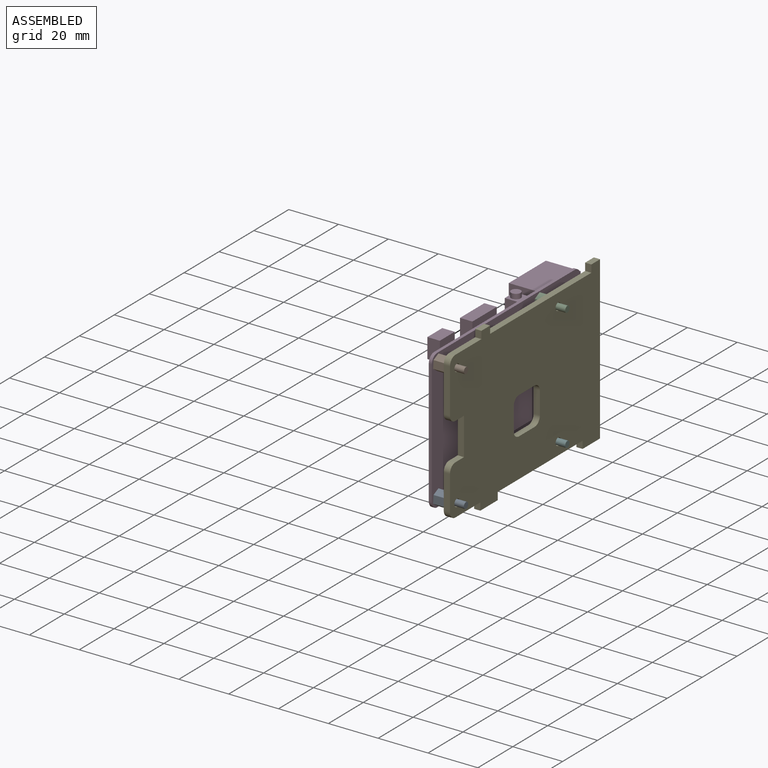
[diagram: assembled view]
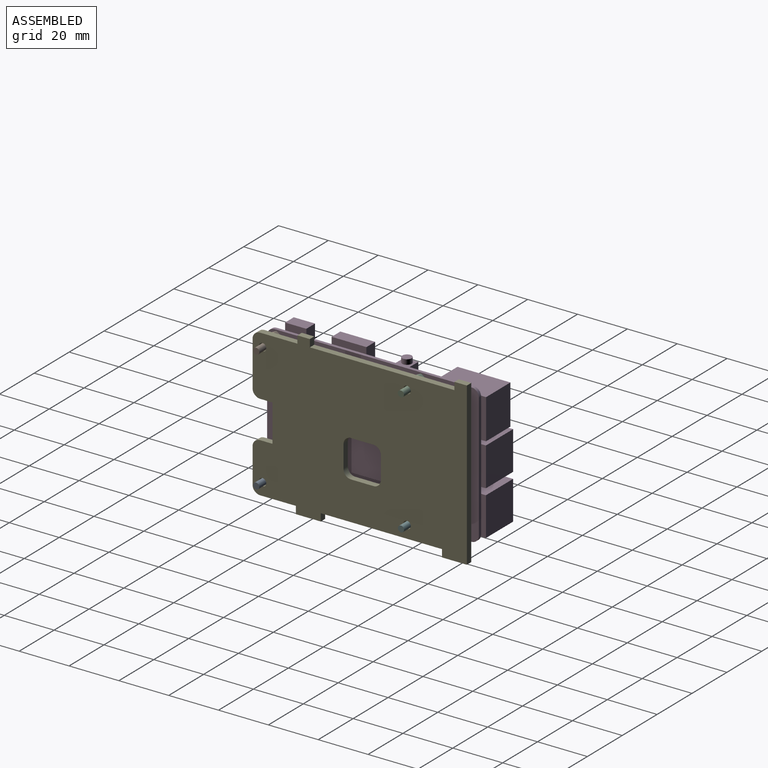
[diagram: assembled view, second angle]
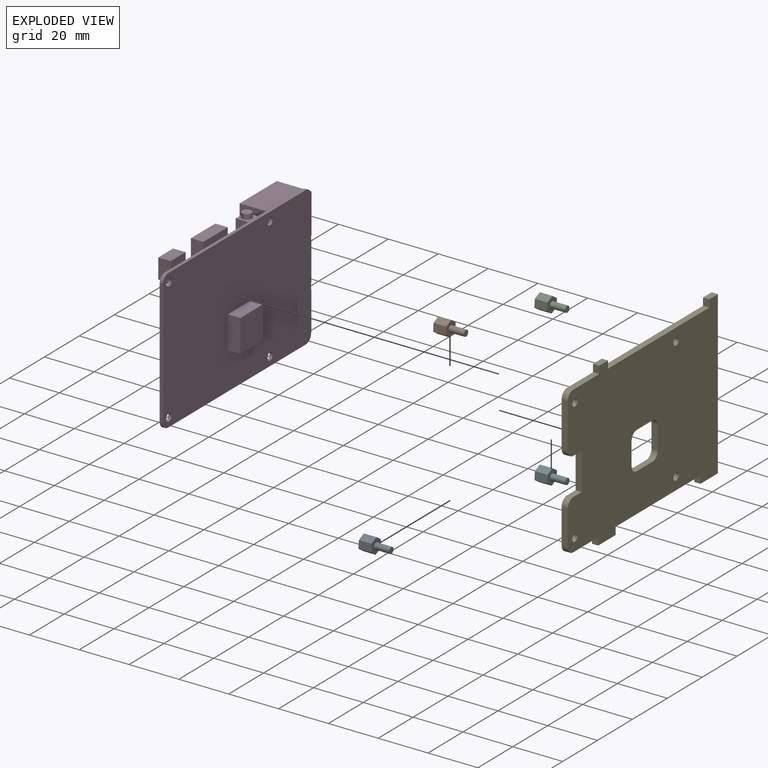
[diagram: exploded view]
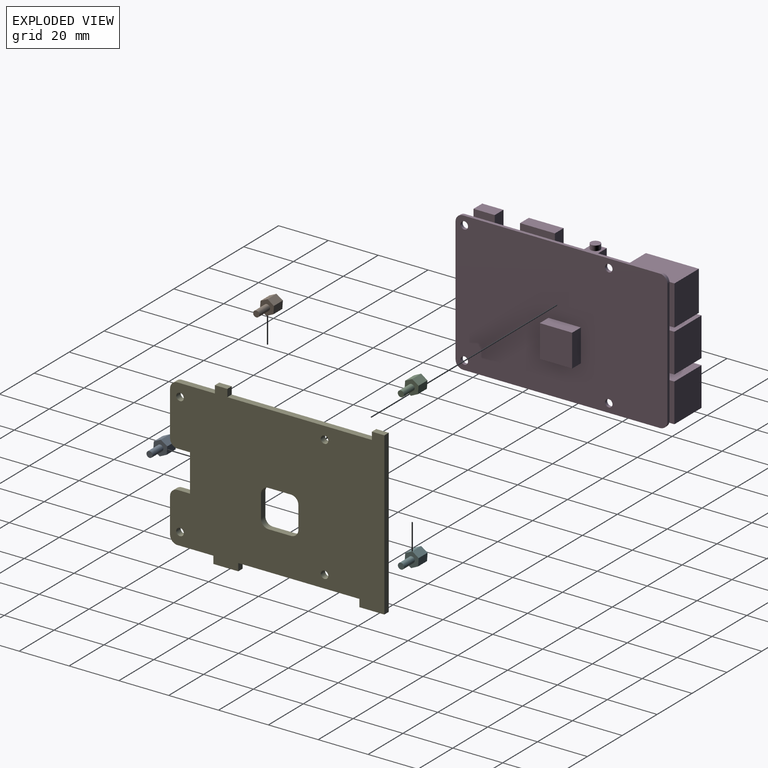
[diagram: exploded view, second angle]
ASSEMBLY  parts=6 mates=3
PART A: 12 faces, bbox 6.2x5.6x11.2 mm
  f0: plane 5.12x3.11mm, normal (-0.07,1,0), area 16mm2, adj f1,f5,f6,f7
  f1: plane 5.12x2.81mm, normal (-0.9,0.43,0), area 16mm2, adj f0,f2,f6,f7
  f2: plane 5.12x2.58mm, normal (-0.83,-0.56,0), area 16mm2, adj f1,f3,f6,f7
  f3: plane 5.12x3.11mm, normal (0.07,-1,0), area 16mm2, adj f2,f4,f6,f7
  f4: plane 5.12x2.81mm, normal (0.9,-0.43,0), area 16mm2, adj f3,f5,f6,f7
  f5: plane 5.12x2.58mm, normal (0.83,0.56,0), area 16mm2, adj f0,f4,f6,f7
  f6: plane 6.22x5.62mm, normal (0,0,1), area 22.1mm2, adj f0,f1,f2,f3,f4,f5,f11
  f7: plane 6.22x5.62mm, normal (0,0,-1), area 20.4mm2, adj f0,f1,f2,f3,f4,f5,f8
  f8: cylinder r=1.24mm len=6.12mm, axis (0,0,-1), area 47.7mm2, adj f7,f9
  f9: plane 2.48x2.48mm, normal (0,0,-1), area 4.8mm2, adj f8
  f10: cone r=0mm half-angle=59deg, axis (0,0,1), area 3.7mm2, adj f11
  f11: cylinder r=1mm len=4mm, axis (0,0,1), area 25.1mm2, adj f6,f10
PART B: same geometry as A
PART C: same geometry as A
PART D: 55 faces, bbox 87x21.8x58.8 mm
  f0: plane 85x56mm, normal (0,1,0), area 3708.4mm2, adj f2,f3,f4,f5,f6,f7,f8,f9
  f1: plane 85x56mm, normal (0,-1,0), area 4555mm2, adj f2,f3,f4,f5,f6,f7,f8,f9
  f2: plane 79x1.25mm, normal (0,0,-1), area 98.7mm2, adj f0,f1,f10,f11
  f3: plane 50x1.25mm, normal (1,0,0), area 62.5mm2, adj f0,f1,f11,f12,f14,f20,f26
  f4: plane 79x6.25mm, normal (0,0,1), area 115.3mm2, adj f0,f1,f12,f13,f38,f39,f40,f41
  f5: cylinder r=1.5mm len=3mm, axis (0,-1,0), area 11.8mm2, adj f0,f1
  f6: cylinder r=1.5mm len=3mm, axis (0,-1,0), area 11.8mm2, adj f0,f1
  f7: cylinder r=1.5mm len=3mm, axis (0,-1,0), area 11.8mm2, adj f0,f1
  f8: cylinder r=1.5mm len=3mm, axis (0,-1,0), area 11.8mm2, adj f0,f1
  f9: plane 50x1.25mm, normal (-1,0,0), area 62.5mm2, adj f0,f1,f10,f13
  f10: cylinder r=3mm len=3mm, axis (0,-1,0), area 5.9mm2, adj f0,f1,f2,f9
  f11: cylinder r=3mm len=3mm, axis (0,1,0), area 5.9mm2, adj f0,f1,f2,f3,f20
  f12: cylinder r=3mm len=3mm, axis (0,-1,0), area 5.9mm2, adj f0,f1,f3,f4,f26
  f13: cylinder r=3mm len=3mm, axis (0,1,0), area 5.9mm2, adj f0,f1,f4,f9
  f14: plane 15.5x1.95mm, normal (0,-1,0), area 30.2mm2, adj f3,f15,f16,f18
  f15: plane 15.55x15.5mm, normal (1,0,0), area 241mm2, adj f14,f16,f18,f19
  f16: plane 17.15x15.55mm, normal (0,0,-1), area 266.7mm2, adj f0,f14,f15,f17,f19
  f17: plane 15.55x15.5mm, normal (-1,0,0), area 241mm2, adj f0,f16,f18,f19
  f18: plane 17.15x15.55mm, normal (0,0,1), area 266.7mm2, adj f0,f14,f15,f17,f19
  f19: plane 17.15x15.5mm, normal (0,1,0), area 265.8mm2, adj f15,f16,f17,f18
  f20: plane 15.5x2.06mm, normal (0,-1,0), area 30.3mm2, adj f3,f11,f21,f23,f24
  f21: plane 17.15x15.55mm, normal (0,0,-1), area 266.7mm2, adj f0,f20,f22,f24,f25
  f22: plane 15.55x15.5mm, normal (-1,0,0), area 241mm2, adj f0,f21,f23,f25
  f23: plane 17.15x15.55mm, normal (0,0,1), area 266.7mm2, adj f0,f20,f22,f24,f25
  f24: plane 15.55x15.5mm, normal (1,0,0), area 241mm2, adj f20,f21,f23,f25
  f25: plane 17.15x15.5mm, normal (0,1,0), area 265.8mm2, adj f21,f22,f23,f24
  f26: plane 16x2.02mm, normal (0,-1,0), area 32mm2, adj f3,f12,f27,f29,f30
  f27: plane 21.25x13.95mm, normal (0,0,-1), area 296.4mm2, adj f0,f26,f28,f30,f31
  f28: plane 16x13.95mm, normal (-1,0,0), area 223.2mm2, adj f0,f27,f29,f31
  f29: plane 21.25x13.95mm, normal (0,0,1), area 296.4mm2, adj f0,f26,f28,f30,f31
  f30: plane 16x13.95mm, normal (1,0,0), area 223.2mm2, adj f26,f27,f29,f31
  f31: plane 21.25x16mm, normal (0,1,0), area 340mm2, adj f27,f28,f29,f30
  f32: plane 13x5mm, normal (0,0,-1), area 65mm2, adj f1,f33,f35,f36
  f33: plane 13x5mm, normal (1,0,0), area 65mm2, adj f1,f32,f34,f36
  f34: plane 13x5mm, normal (0,0,1), area 65mm2, adj f1,f33,f35,f36
  f35: plane 13x5mm, normal (-1,0,0), area 65mm2, adj f1,f32,f34,f36
  f36: plane 13x13mm, normal (0,-1,0), area 169mm2, adj f32,f33,f34,f35
  f37: plane 5.63x5mm, normal (0,0,-1), area 28.1mm2, adj f0,f38,f39,f40
  f38: plane 12.27x5mm, normal (-1,0,0), area 61.3mm2, adj f0,f4,f37,f40
  f39: plane 12.27x5mm, normal (1,0,0), area 61.3mm2, adj f0,f4,f37,f40
  f40: plane 12.27x5.63mm, normal (0,1,0), area 69mm2, adj f4,f37,f38,f39
  f41: cylinder r=1.92mm len=3.83mm, axis (0,0,1), area 24.1mm2, adj f4,f42
  f42: plane 3.83x3.83mm, normal (0,0,1), area 11.5mm2, adj f41
  f43: plane 13.97x2.61mm, normal (0,-1,0), area 36.5mm2, adj f4,f45,f46,f47
  f44: plane 13.97x5mm, normal (0,0,-1), area 69.9mm2, adj f0,f45,f47,f48
  f45: plane 11.43x5mm, normal (-1,0,0), area 57.2mm2, adj f0,f43,f44,f46,f48
  f46: plane 13.97x5mm, normal (0,0,1), area 69.9mm2, adj f43,f45,f47,f48
  f47: plane 11.43x5mm, normal (1,0,0), area 57.2mm2, adj f0,f43,f44,f46,f48
  f48: plane 13.97x11.43mm, normal (0,1,0), area 159.7mm2, adj f44,f45,f46,f47
  f49: plane 8.53x2.8mm, normal (0,-1,0), area 23.8mm2, adj f4,f50,f51,f52
  f50: plane 7.98x5mm, normal (-1,0,0), area 39.9mm2, adj f0,f49,f51,f53,f54
  f51: plane 8.53x5mm, normal (0,0,1), area 42.6mm2, adj f49,f50,f52,f54
  f52: plane 7.98x5mm, normal (1,0,0), area 39.9mm2, adj f0,f49,f51,f53,f54
  f53: plane 8.53x5mm, normal (0,0,-1), area 42.6mm2, adj f0,f50,f52,f54
  f54: plane 8.53x7.98mm, normal (0,1,0), area 68.1mm2, adj f50,f51,f52,f53
PART E: 38 faces, bbox 86x2.5x65 mm
  f0: plane 5x2.5mm, normal (0,0,1), area 12.5mm2, adj f27,f28,f29,f30
  f1: plane 14x2.5mm, normal (-1,0,0), area 35mm2, adj f28,f29,f30,f31
  f2: plane 14.37x2.5mm, normal (0,0,-1), area 35.9mm2, adj f3,f28,f29,f31
  f3: plane 3x2.5mm, normal (-1,0,0), area 7.5mm2, adj f2,f4,f28,f29
  f4: plane 10x2.5mm, normal (0,0,-1), area 25mm2, adj f3,f5,f28,f29
  f5: plane 3x2.5mm, normal (1,0,0), area 7.5mm2, adj f4,f6,f28,f29
  f6: plane 48.63x2.5mm, normal (0,0,-1), area 121.6mm2, adj f5,f7,f28,f29
  f7: plane 3x2.5mm, normal (-1,0,0), area 7.5mm2, adj f6,f8,f28,f29
  f8: plane 10x2.5mm, normal (0,0,-1), area 25mm2, adj f7,f9,f28,f29
  f9: plane 65x2.5mm, normal (1,0,0), area 162.5mm2, adj f8,f10,f28,f29
  f10: plane 5x2.5mm, normal (0,0,1), area 12.5mm2, adj f9,f11,f28,f29
  f11: plane 3x2.5mm, normal (-1,0,0), area 7.5mm2, adj f10,f12,f28,f29
  f12: plane 58x2.5mm, normal (0,0,1), area 145mm2, adj f11,f13,f28,f29
  f13: plane 3x2.5mm, normal (1,0,0), area 7.5mm2, adj f12,f14,f28,f29
  f14: plane 5x2.5mm, normal (0,0,1), area 12.5mm2, adj f13,f15,f28,f29
  f15: plane 3x2.5mm, normal (-1,0,0), area 7.5mm2, adj f14,f16,f28,f29
  f16: plane 15x2.5mm, normal (0,0,1), area 37.5mm2, adj f15,f28,f29,f32
  f17: plane 18x2.5mm, normal (-1,0,0), area 45mm2, adj f28,f29,f32,f33
  f18: plane 5x2.5mm, normal (0,0,-1), area 12.5mm2, adj f27,f28,f29,f33
  f19: plane 9x2.5mm, normal (-1,0,0), area 22.5mm2, adj f28,f29,f34,f35
  f20: plane 9x2.5mm, normal (0,0,1), area 22.5mm2, adj f28,f29,f35,f36
  f21: plane 9x2.5mm, normal (1,0,0), area 22.5mm2, adj f28,f29,f36,f37
  f22: plane 9x2.5mm, normal (0,0,-1), area 22.5mm2, adj f28,f29,f34,f37
  f23: cylinder r=1.5mm len=3mm, axis (0,-1,0), area 23.6mm2, adj f28,f29
  f24: cylinder r=1.5mm len=3mm, axis (0,-1,0), area 23.6mm2, adj f28,f29
  f25: cylinder r=1.5mm len=3mm, axis (0,-1,0), area 23.6mm2, adj f28,f29
  f26: cylinder r=1.5mm len=3mm, axis (0,-1,0), area 23.6mm2, adj f28,f29
  f27: plane 15x2.5mm, normal (-1,0,0), area 37.5mm2, adj f0,f18,f28,f29
  f28: plane 86x65mm, normal (0,-1,0), area 4790.7mm2, adj f0,f1,f2,f3,f4,f5,f6,f7
  f29: plane 86x65mm, normal (0,1,0), area 4790.7mm2, adj f0,f1,f2,f3,f4,f5,f6,f7
  f30: cylinder r=3mm len=3mm, axis (0,-1,0), area 11.8mm2, adj f0,f1,f28,f29
  f31: cylinder r=3mm len=3mm, axis (0,-1,0), area 11.8mm2, adj f1,f2,f28,f29
  f32: cylinder r=3mm len=3mm, axis (0,1,0), area 11.8mm2, adj f16,f17,f28,f29
  f33: cylinder r=3mm len=3mm, axis (0,-1,0), area 11.8mm2, adj f17,f18,f28,f29
  f34: cylinder r=3mm len=3mm, axis (0,1,0), area 11.8mm2, adj f19,f22,f28,f29
  f35: cylinder r=3mm len=3mm, axis (0,-1,0), area 11.8mm2, adj f19,f20,f28,f29
  f36: cylinder r=3mm len=3mm, axis (0,1,0), area 11.8mm2, adj f20,f21,f28,f29
  f37: cylinder r=3mm len=3mm, axis (0,-1,0), area 11.8mm2, adj f21,f22,f28,f29
PART F: same geometry as A
PLACE A rot(axis=(0,-1,0),90deg) t=(-3.82,-47.28,-15.52)mm fixed
PLACE B rot(axis=(0,-1,0),90deg) t=(-3.82,-47.26,33.39)mm fixed
PLACE C rot(axis=(0,-1,0),90deg) t=(-3.82,10.77,33.44)mm fixed
PLACE D rot(axis=(0,0,1),90deg) t=(-10.19,-4.53,-16.02)mm fixed
PLACE E rot(axis=(0,0,1),90deg) t=(-1.32,-8.28,8.98)mm
PLACE F rot(axis=(0,-1,0),90deg) t=(-3.82,10.82,-15.56)mm fixed
MATE planar E.f29 <-> C.f7  axis (-1,0,0) through (-3.82,-7.05,9.13)mm
MATE cylindrical E.f23 <-> D.f8  axis (1,0,0) through (-2.57,-47.28,33.48)mm
MATE planar C.f6 <-> D.f1  axis (-1,0,0) through (-8.94,8.08,33.64)mm
